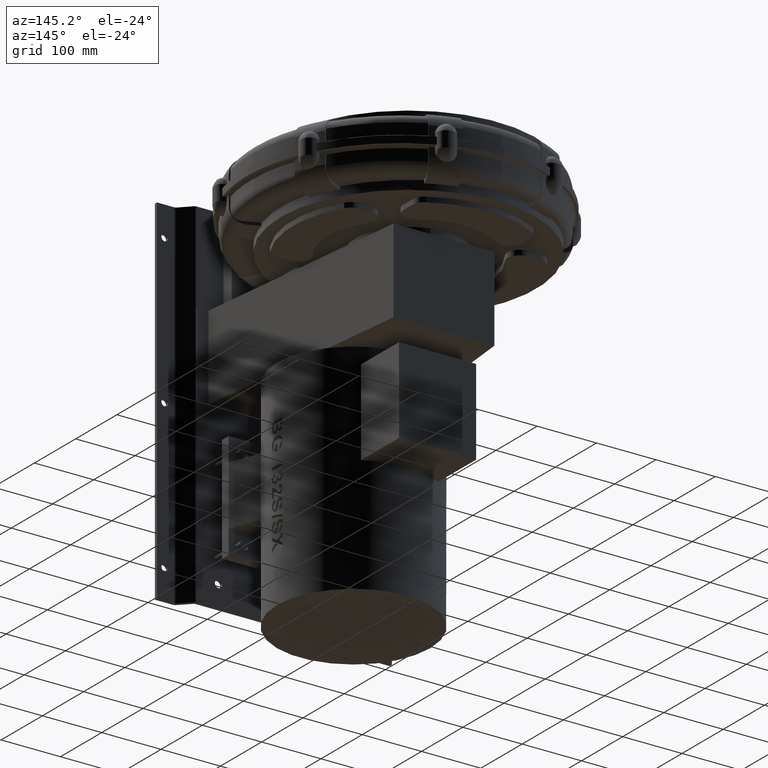
[diagram: clean part render]
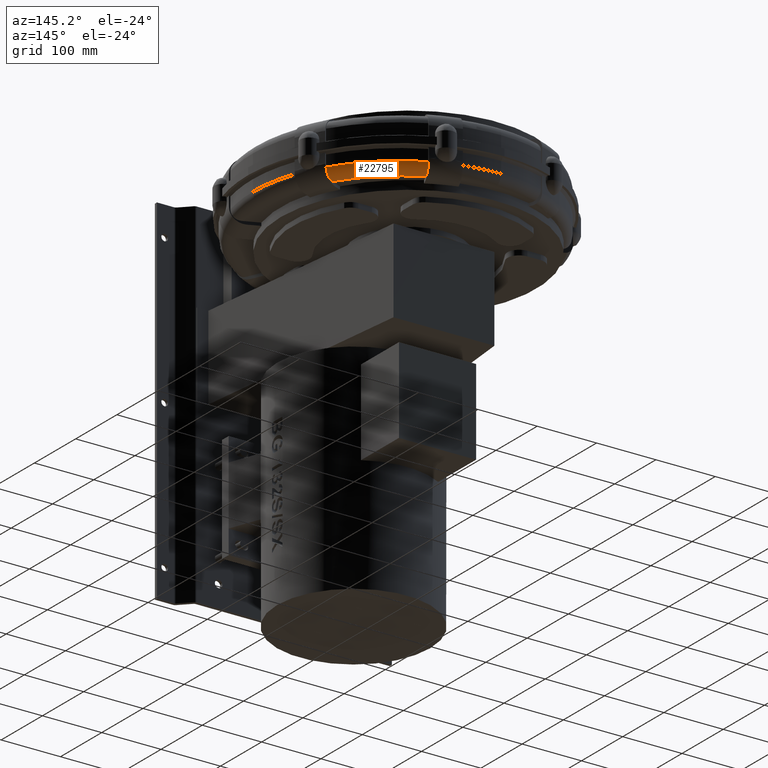
[diagram: same view with one face highlighted and labeled with its STEP entity id]
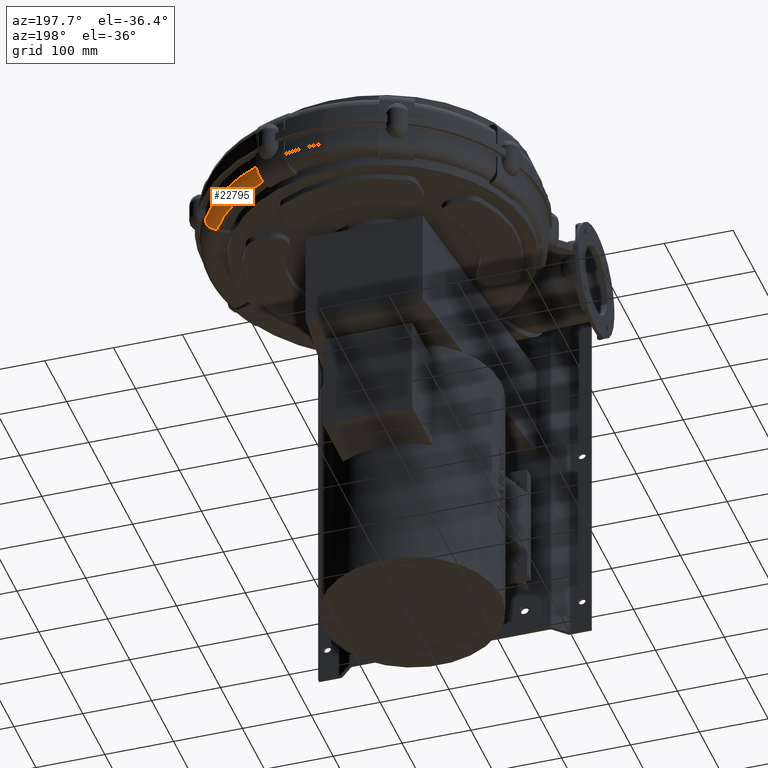
[diagram: same view with one face highlighted and labeled with its STEP entity id]
A machine part, auxiliary view. The second image highlights one B-rep face of the part: STEP entity #22795.
A second angle (auxiliary view) of the same face is appended — the face is thin or edge-on in the first view.
In plain terms, the highlighted toroidal blend (fillet) surface has major radius 231 mm and minor (blend) radius 16 mm.
Its self-contained STEP definition (entity closure, byte-faithful):
#20746=CARTESIAN_POINT('',(205.8949342112108,111.80308308136409,23.499999999999879));
#20747=VERTEX_POINT('',#20746);
#20754=CARTESIAN_POINT('',(220.85031812418418,117.99780592861418,39.499999999999879));
#20755=VERTEX_POINT('',#20754);
#20756=CARTESIAN_POINT('',(220.85031812418418,117.99780592861417,39.499999999999872));
#20757=CARTESIAN_POINT('',(220.85031812418418,117.99780592861417,38.516272544048505));
#20758=CARTESIAN_POINT('',(220.75997887626664,117.96038618691213,37.442034455038858));
#20759=CARTESIAN_POINT('',(220.3707473092947,117.79916119296863,35.338729911670463));
#20760=CARTESIAN_POINT('',(220.07187660582903,117.67536489419714,34.309658770947905));
#20761=CARTESIAN_POINT('',(219.37057829527188,117.38487762269503,32.488568551615202));
#20762=CARTESIAN_POINT('',(218.90266851389086,117.19106304527998,31.52936449043565));
#20763=CARTESIAN_POINT('',(217.78985017518949,116.73011859693234,29.739769856253989));
#20764=CARTESIAN_POINT('',(217.14498827515857,116.46300805208186,28.909345293201905));
#20765=CARTESIAN_POINT('',(215.84343330923042,115.92388633302035,27.510019943267849));
#20766=CARTESIAN_POINT('',(215.06590922359703,115.60182531167928,26.813224068554547));
#20767=CARTESIAN_POINT('',(213.39270518723541,114.90876150720086,25.612273773424803));
#20768=CARTESIAN_POINT('',(212.49706022420881,114.53777321644415,25.108062244454956));
#20769=CARTESIAN_POINT('',(210.78853625138751,113.83007941526196,24.347219179321378));
#20770=CARTESIAN_POINT('',(209.81762742587787,113.42791581190808,24.02167603485541));
#20771=CARTESIAN_POINT('',(207.83427490896489,112.60638430043591,23.598085506314874));
#20772=CARTESIAN_POINT('',(206.82183816725401,112.18701927097445,23.499999999999886));
#20773=CARTESIAN_POINT('',(205.8949342112108,111.80308308136406,23.499999999999886));
#20774=B_SPLINE_CURVE_WITH_KNOTS('',3,(#20756,#20757,#20758,#20759,#20760,#20761,#20762,#20763,#20764,#20765,#20766,#20767,#20768,#20769,#20770,#20771,#20772,#20773),.UNSPECIFIED.,.F.,.U.,(4,2,2,2,2,2,2,2,4),(0.0,0.295118236785412,0.590236473570824,0.887006282451134,1.183776091331444,1.482701514347261,1.781626937363079,2.082609021095486,2.383591104827893),.UNSPECIFIED.);
#20775=EDGE_CURVE('',#20755,#20747,#20774,.T.);
#21949=CARTESIAN_POINT('',(115.16805946323016,214.01870582938105,39.499999999999467));
#21950=VERTEX_POINT('',#21949);
#21957=CARTESIAN_POINT('',(109.03639578638109,199.21556022082129,23.49999999999951));
#21958=VERTEX_POINT('',#21957);
#21959=CARTESIAN_POINT('',(109.03639578638108,199.21556022082129,23.49999999999951));
#21960=CARTESIAN_POINT('',(109.4149637531183,200.12950414039832,23.499999999999503));
#21961=CARTESIAN_POINT('',(109.82841591254568,201.1276659510803,23.597492749359333));
#21962=CARTESIAN_POINT('',(110.63816901729535,203.08258287874071,24.017974833024731));
#21963=CARTESIAN_POINT('',(111.03446961101996,204.03933714688719,24.3409687908275));
#21964=CARTESIAN_POINT('',(111.73376365044265,205.72758230094817,25.0972544752766));
#21965=CARTESIAN_POINT('',(112.1012142518847,206.61468652645169,25.600078877089718));
#21966=CARTESIAN_POINT('',(112.78728071219777,208.27099747962882,26.796862238194954));
#21967=CARTESIAN_POINT('',(113.10589479864946,209.04019992830359,27.490828135528762));
#21968=CARTESIAN_POINT('',(113.64080643824599,210.3315908632888,28.887467192773585));
#21969=CARTESIAN_POINT('',(113.9064315945466,210.97286671813717,29.718687892834453));
#21970=CARTESIAN_POINT('',(114.36458656152168,212.0789506530771,31.508853950645115));
#21971=CARTESIAN_POINT('',(114.55711402079542,212.54375305638504,32.467803417673728));
#21972=CARTESIAN_POINT('',(114.84645033951608,213.24227272112753,34.291718271457022));
#21973=CARTESIAN_POINT('',(114.96995960598636,213.54045046731886,35.324648344081567));
#21974=CARTESIAN_POINT('',(115.13076471139243,213.92866833368902,37.435353667154772));
#21975=CARTESIAN_POINT('',(115.16805946323015,214.01870582938105,38.513129483140219));
#21976=CARTESIAN_POINT('',(115.16805946323015,214.01870582938105,39.499999999999467));
#21977=B_SPLINE_CURVE_WITH_KNOTS('',3,(#21959,#21960,#21961,#21962,#21963,#21964,#21965,#21966,#21967,#21968,#21969,#21970,#21971,#21972,#21973,#21974,#21975,#21976),.UNSPECIFIED.,.F.,.U.,(4,2,2,2,2,2,2,2,4),(-2.371246340544342,-2.074472609527893,-1.777698878511445,-1.481173637570524,-1.184648396629603,-0.888385353372573,-0.592122310115544,-0.296061155057773,0.0),.UNSPECIFIED.);
#21978=EDGE_CURVE('',#21958,#21950,#21977,.T.);
#22724=CARTESIAN_POINT('',(9.000000000000053,-9.000000000000123,23.500000000000014));
#22725=DIRECTION('',(9.285634E-016,9.285634E-016,1.0));
#22726=DIRECTION('',(0.707106781186546,0.707106781186549,-1.313187E-015));
#22727=AXIS2_PLACEMENT_3D('',#22724,#22725,#22726);
#22728=CIRCLE('',#22727,230.99999999999997);
#22729=EDGE_CURVE('',#20747,#21958,#22728,.T.);
#22778=CARTESIAN_POINT('',(9.000000000000036,-9.000000000000073,39.500000000000021));
#22779=DIRECTION('',(-1.156727E-015,3.013854E-015,1.0));
#22780=DIRECTION('',(1.0,0.0,0.0));
#22781=AXIS2_PLACEMENT_3D('',#22778,#22779,#22780);
#22782=TOROIDAL_SURFACE('',#22781,230.99999999999997,16.0);
#22783=ORIENTED_EDGE('',*,*,#21978,.T.);
#22784=CARTESIAN_POINT('',(9.000000000000036,-9.000000000000073,39.500000000000021));
#22785=DIRECTION('',(-9.285634E-016,-9.285634E-016,-1.0));
#22786=DIRECTION('',(0.707106781186546,0.707106781186549,-1.313187E-015));
#22787=AXIS2_PLACEMENT_3D('',#22784,#22785,#22786);
#22788=CIRCLE('',#22787,246.99999999999997);
#22789=EDGE_CURVE('',#21950,#20755,#22788,.T.);
#22790=ORIENTED_EDGE('',*,*,#22789,.T.);
#22791=ORIENTED_EDGE('',*,*,#20775,.T.);
#22792=ORIENTED_EDGE('',*,*,#22729,.T.);
#22793=EDGE_LOOP('',(#22783,#22790,#22791,#22792));
#22794=FACE_OUTER_BOUND('',#22793,.T.);
#22795=ADVANCED_FACE('',(#22794),#22782,.T.);